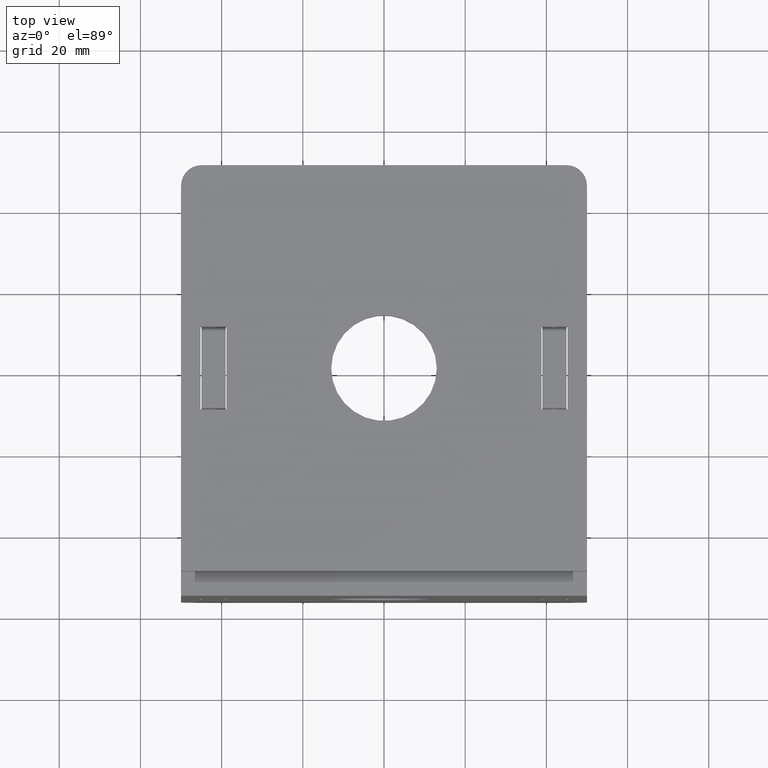
[diagram: clean part render]
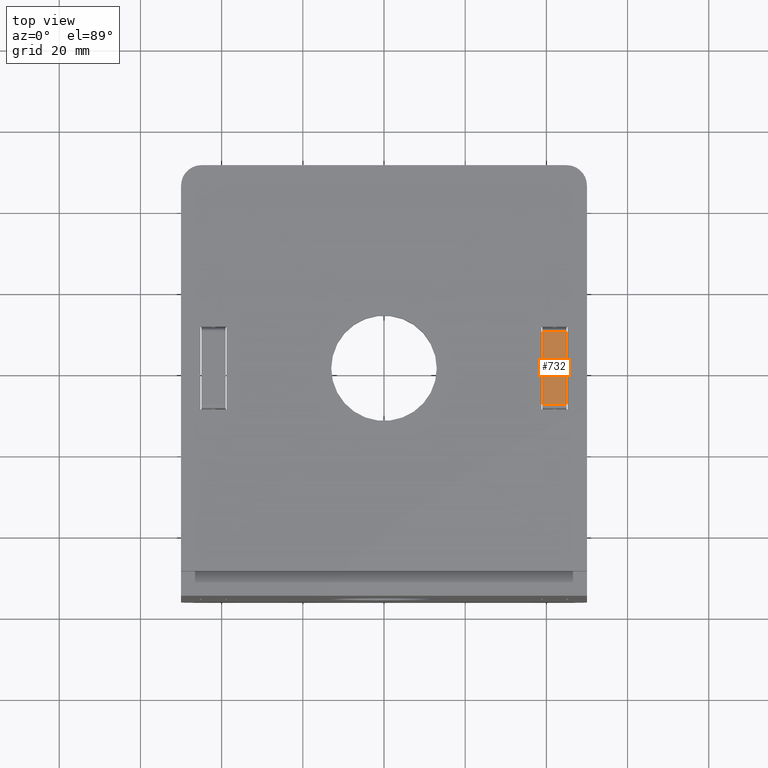
[diagram: same view with one face highlighted and labeled with its STEP entity id]
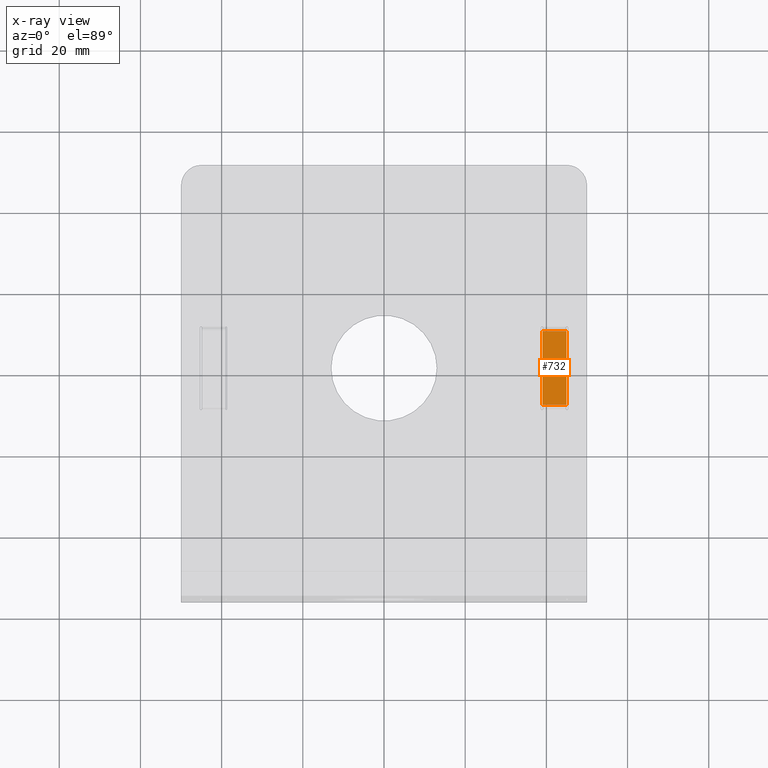
[diagram: x-ray of the same camera — body ghosted, the highlighted face saturated]
A machine part, top view. The second image highlights one B-rep face of the part: STEP entity #732.
The next image is the same camera in x-ray: the body ghosted, the highlighted face saturated — about 0% of this face is hidden behind the body in this view.
In plain terms, the highlighted planar face has unit normal (0, 0, -1).
Its self-contained STEP definition (entity closure, byte-faithful):
#64 = VERTEX_POINT ( 'NONE', #1385 ) ;
#84 = VECTOR ( 'NONE', #852, 1000.000000000000000 ) ;
#133 = ORIENTED_EDGE ( 'NONE', *, *, #1430, .F. ) ;
#186 = CARTESIAN_POINT ( 'NONE',  ( -6.000000000000005329, 58.99999999999997158, -6.000000000000060396 ) ) ;
#203 = LINE ( 'NONE', #960, #266 ) ;
#224 = CARTESIAN_POINT ( 'NONE',  ( -6.000000000000782485, 40.00000000000000711, -3.885780586188047891E-13 ) ) ;
#241 = CARTESIAN_POINT ( 'NONE',  ( -6.000000000000005329, 59.99999999999997158, -6.000000000000060396 ) ) ;
#266 = VECTOR ( 'NONE', #592, 1000.000000000000000 ) ;
#321 = ORIENTED_EDGE ( 'NONE', *, *, #446, .T. ) ;
#342 = CARTESIAN_POINT ( 'NONE',  ( -6.000000000000782485, 58.99999999999997158, -3.885780586188047891E-13 ) ) ;
#405 = EDGE_CURVE ( 'NONE', #962, #1533, #934, .T. ) ;
#410 = LINE ( 'NONE', #1193, #970 ) ;
#446 = EDGE_CURVE ( 'NONE', #962, #1007, #203, .T. ) ;
#548 = FACE_OUTER_BOUND ( 'NONE', #579, .T. ) ;
#579 = EDGE_LOOP ( 'NONE', ( #1246, #321, #133, #886 ) ) ;
#592 = DIRECTION ( 'NONE',  ( 3.978414497066059672E-35, -5.700752635386218125E-32, -1.000000000000000000 ) ) ;
#674 = PLANE ( 'NONE',  #1124 ) ;
#732 = ADVANCED_FACE ( 'NONE', ( #548 ), #674, .F. ) ;
#798 = DIRECTION ( 'NONE',  ( 1.000000000000000000, 3.620748295448003404E-32, 3.978414497066059672E-35 ) ) ;
#821 = DIRECTION ( 'NONE',  ( -3.978414497066059672E-35, 5.700752635386218125E-32, 1.000000000000000000 ) ) ;
#827 = CARTESIAN_POINT ( 'NONE',  ( -6.000000000000782485, 41.00000000000000711, -3.885780586188047891E-13 ) ) ;
#852 = DIRECTION ( 'NONE',  ( 4.237045877651918877E-32, 1.000000000000000000, 4.005934284325450574E-32 ) ) ;
#886 = ORIENTED_EDGE ( 'NONE', *, *, #1187, .T. ) ;
#919 = CARTESIAN_POINT ( 'NONE',  ( -5.999999999999783284, 50.00000000000000000, -45.00000000000004263 ) ) ;
#934 = LINE ( 'NONE', #224, #1537 ) ;
#960 = CARTESIAN_POINT ( 'NONE',  ( -5.999999999999783284, 59.00000000000004974, -45.00000000000004263 ) ) ;
#962 = VERTEX_POINT ( 'NONE', #342 ) ;
#970 = VECTOR ( 'NONE', #821, 1000.000000000000000 ) ;
#1007 = VERTEX_POINT ( 'NONE', #186 ) ;
#1124 = AXIS2_PLACEMENT_3D ( 'NONE', #919, #798, #1268 ) ;
#1187 = EDGE_CURVE ( 'NONE', #64, #1533, #410, .T. ) ;
#1190 = DIRECTION ( 'NONE',  ( -4.237045877651918877E-32, -1.000000000000000000, -4.005934284325450574E-32 ) ) ;
#1193 = CARTESIAN_POINT ( 'NONE',  ( -5.999999999999783284, 41.00000000000000711, -45.00000000000004263 ) ) ;
#1246 = ORIENTED_EDGE ( 'NONE', *, *, #405, .F. ) ;
#1268 = DIRECTION ( 'NONE',  ( 3.978414497066059672E-35, -5.700752635386218125E-32, -1.000000000000000000 ) ) ;
#1385 = CARTESIAN_POINT ( 'NONE',  ( -6.000000000000560441, 41.00000000000000711, -5.999999999999894307 ) ) ;
#1430 = EDGE_CURVE ( 'NONE', #64, #1007, #1588, .T. ) ;
#1533 = VERTEX_POINT ( 'NONE', #827 ) ;
#1537 = VECTOR ( 'NONE', #1190, 1000.000000000000000 ) ;
#1588 = LINE ( 'NONE', #241, #84 ) ;